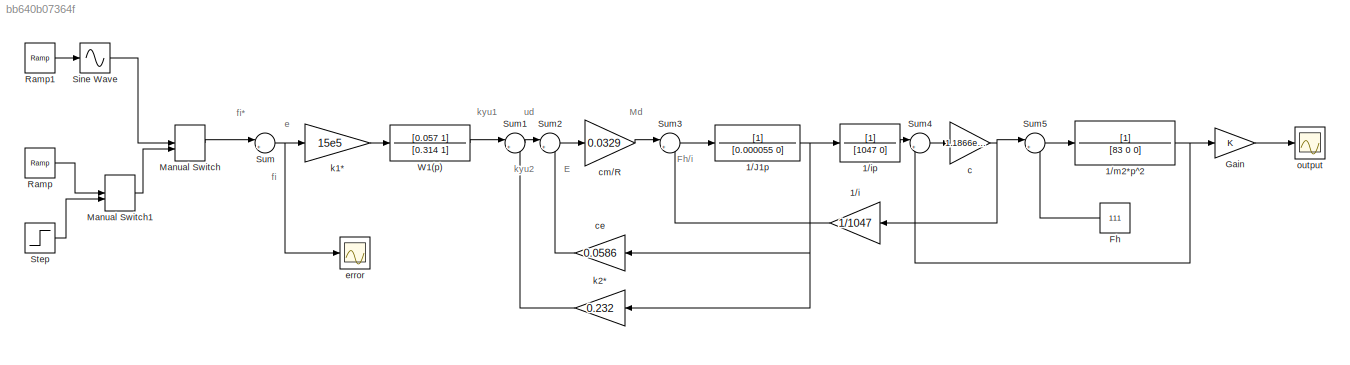
MODEL slx_bb640b07364f
KIND model
CONFIG AbsTol = auto
CONFIG EnableMultiTasking = off
CONFIG FixedStep = auto
CONFIG MaxStep = auto
CONFIG MinStep = auto
CONFIG RelTol = 1e-3
CONFIG SampleTimeConstraint = Unconstrained
CONFIG Solver = VariableStepAuto
CONFIG SolverName = VariableStepAuto
CONFIG StartTime = 0.0
CONFIG StopTime = 10
BLOCK [TransferFcn] 1//J1p
  Denominator = [0.000055 0]
BLOCK [Gain] 1//i
  Gain = 1/1047
  OutDataTypeStr = Inherit: Inherit via internal rule
  ParamDataTypeStr = Inherit: Inherit via internal rule
  SaturateOnIntegerOverflow = off
BLOCK [TransferFcn] 1//ip
  Denominator = [1047 0]
BLOCK [TransferFcn] 1//m2*p^2
  Denominator = [83 0 0]
BLOCK [Constant] Fh
  Value = 111
BLOCK [Gain] Gain
  OutDataTypeStr = Inherit: Inherit via internal rule
  ParamDataTypeStr = Inherit: Inherit via internal rule
  SaturateOnIntegerOverflow = off
BLOCK [ManualSwitch] Manual Switch
BLOCK [ManualSwitch] Manual Switch1
BLOCK [Reference] Ramp  REF=simulink/Sources/Ramp
  Ports = [0, 1]
  SourceBlock = simulink/Sources/Ramp
  SourceProductBaseCode = SL
  SourceProductName = Simulink
  SourceType = Ramp
BLOCK [Reference] Ramp1  REF=simulink/Sources/Ramp
  Ports = [0, 1]
  SourceBlock = simulink/Sources/Ramp
  SourceProductBaseCode = SL
  SourceProductName = Simulink
  SourceType = Ramp
BLOCK [Sin] Sine Wave
  Amplitude = 0.09
  Frequency = 3
  Ports = [1, 1]
  SampleTime = 0
  TimeSource = Use external signal
BLOCK [Step] Step
  SampleTime = 0
  Time = 0
BLOCK [Sum] Sum
  IconShape = round
  InputSameDT = off
  Inputs = |+-
  OutDataTypeStr = Inherit: Inherit via internal rule
  Ports = [2, 1]
  SaturateOnIntegerOverflow = off
BLOCK [Sum] Sum1
  IconShape = round
  InputSameDT = off
  Inputs = |+-
  OutDataTypeStr = Inherit: Inherit via internal rule
  Ports = [2, 1]
  SaturateOnIntegerOverflow = off
BLOCK [Sum] Sum2
  IconShape = round
  InputSameDT = off
  Inputs = |+-
  OutDataTypeStr = Inherit: Inherit via internal rule
  Ports = [2, 1]
  SaturateOnIntegerOverflow = off
BLOCK [Sum] Sum3
  IconShape = round
  InputSameDT = off
  Inputs = |+-
  OutDataTypeStr = Inherit: Inherit via internal rule
  Ports = [2, 1]
  SaturateOnIntegerOverflow = off
BLOCK [Sum] Sum4
  IconShape = round
  InputSameDT = off
  Inputs = |+-
  OutDataTypeStr = Inherit: Inherit via internal rule
  Ports = [2, 1]
  SaturateOnIntegerOverflow = off
BLOCK [Sum] Sum5
  IconShape = round
  InputSameDT = off
  Inputs = |+-
  OutDataTypeStr = Inherit: Inherit via internal rule
  Ports = [2, 1]
  SaturateOnIntegerOverflow = off
BLOCK [TransferFcn] W1(p)
  Denominator = [0.314 1]
  Numerator = [0.057 1]
BLOCK [Gain] c
  Gain = 1.1866e+8
  OutDataTypeStr = Inherit: Inherit via internal rule
  ParamDataTypeStr = Inherit: Inherit via internal rule
  SaturateOnIntegerOverflow = off
BLOCK [Gain] ce
  Gain = 0.0586
  OutDataTypeStr = Inherit: Inherit via internal rule
  ParamDataTypeStr = Inherit: Inherit via internal rule
  SaturateOnIntegerOverflow = off
BLOCK [Gain] cm//R
  Gain = 0.0329
  OutDataTypeStr = Inherit: Inherit via internal rule
  ParamDataTypeStr = Inherit: Inherit via internal rule
  SaturateOnIntegerOverflow = off
BLOCK [Scope] error 
  Floating = off
  NumInputPorts = 1
  Ports = [1]
  ScopeSpecificationString = Simulink.scopes.TimeScopeBlockCfg('CurrentConfiguration', extmgr.ConfigurationSet(extmgr.Configuration('Core','General UI',true),extmgr.Configuration('Core','Source UI',true),extmgr.Configuration('Sources','WiredSimulink',true,'DataLoggingVariableName','ScopeData1'),extmgr.Configuration('Visuals','Time Domain',true,'SerializedDisplays',{struct('MinYLimReal','-0.09178','MaxYLimReal','0.09391','YLab...<+1468ch>
BLOCK [Gain] k1*
  Gain = 15e5
  OutDataTypeStr = Inherit: Inherit via internal rule
  ParamDataTypeStr = Inherit: Inherit via internal rule
  SaturateOnIntegerOverflow = off
BLOCK [Gain] k2*
  Gain = 0.232
  OutDataTypeStr = Inherit: Inherit via internal rule
  ParamDataTypeStr = Inherit: Inherit via internal rule
  SaturateOnIntegerOverflow = off
BLOCK [Scope] output
  Floating = off
  NumInputPorts = 1
  Ports = [1]
  ScopeSpecificationString = Simulink.scopes.TimeScopeBlockCfg('CurrentConfiguration', extmgr.ConfigurationSet(extmgr.Configuration('Core','General UI',true),extmgr.Configuration('Core','Source UI',true),extmgr.Configuration('Sources','WiredSimulink',true),extmgr.Configuration('Visuals','Time Domain',true,'SerializedDisplays',{struct('MinYLimReal','-0.11256','MaxYLimReal','0.11255','YLabelReal','','MinYLimMag','0.00000','MaxY...<+1423ch>
ANNOTATION (root): E
ANNOTATION (root): Fh/i
ANNOTATION (root): Md
ANNOTATION (root): e
ANNOTATION (root): fi
ANNOTATION (root): fi*
ANNOTATION (root): kyu1
ANNOTATION (root): kyu2
ANNOTATION (root): ud
NET 1//J1p:1 -> 1//ip:1, ce:1, k2*:1
LINE 1//i:1 -> Sum3:2
LINE 1//ip:1 -> Sum4:1
NET 1//m2*p^2:1 -> Gain:1, Sum4:2
LINE Fh:1 -> Sum5:2
LINE Gain:1 -> output:1
LINE Manual Switch1:1 -> Manual Switch:2
LINE Manual Switch:1 -> Sum:1
LINE Ramp1:1 -> Sine Wave:1
LINE Ramp:1 -> Manual Switch1:1
LINE Sine Wave:1 -> Manual Switch:1
LINE Step:1 -> Manual Switch1:2
LINE Sum1:1 -> Sum2:1
LINE Sum2:1 -> cm//R:1
LINE Sum3:1 -> 1//J1p:1
LINE Sum4:1 -> c:1
LINE Sum5:1 -> 1//m2*p^2:1
NET Sum:1 -> error :1, k1*:1
LINE W1(p):1 -> Sum1:1
NET c:1 -> 1//i:1, Sum5:1
LINE ce:1 -> Sum2:2
LINE cm//R:1 -> Sum3:1
LINE k1*:1 -> W1(p):1
LINE k2*:1 -> Sum1:2
note: NET lines group one-source signal fan-out (src -> all destinations, sorted); 1:1 wires keep LINE
